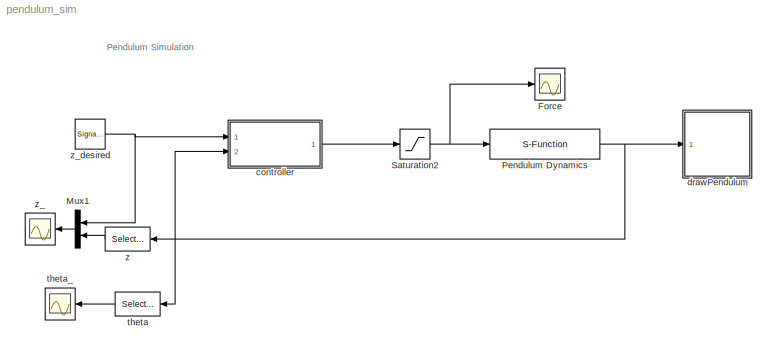
MODEL pendulum_sim
KIND model
BLOCK [Scope] Force
  DataFormat = StructureWithTime
  Floating = off
  LimitDataPoints = off
  NumInputPorts = 1
  Ports = [1]
  SID = 21
  SampleTime = 0
  TimeRange = 100
  YMax = 10
  YMin = -6
BLOCK [Mux] Mux1
  DisplayOption = bar
  Inputs = 2
  Ports = [2, 1]
  SID = 24
BLOCK [S-Function] Pendulum Dynamics
  EnableBusSupport = off
  FunctionName = pendulum_dynamics
  Parameters = AP
  Ports = [1, 1]
  SID = 11
BLOCK [Saturate] Saturation2
  LowerLimit = -5
  Ports = [1, 1]
  SID = 37
  UpperLimit = 5
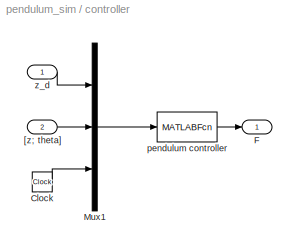
BLOCK [SubSystem] controller
  FunctionWithSeparateData = off
  MaskHideContents = off
  MinAlgLoopOccurrences = off
  Opaque = off
  Ports = [2, 1]
  PropExecContextOutsideSubsystem = off
  RTWSystemCode = Auto
  RequestExecContextInheritance = off
  SID = 38
BLOCK [Clock] controller/Clock
  Decimation = 10
  SID = 41
BLOCK [Outport] controller/F
  IconDisplay = Port number
  SID = 44
BLOCK [Mux] controller/Mux1
  DisplayOption = bar
  Inputs = 3
  Ports = [3, 1]
  SID = 42
BLOCK [Inport] controller/[z; theta]
  IconDisplay = Port number
  Port = 2
  SID = 40
BLOCK [MATLABFcn] controller/pendulum controller
  MATLABFcn = pendulum_ctrl(u,P)
  OutputDimensions = 1
  Ports = [1, 1]
  SID = 43
  SampleTime = P.Ts
BLOCK [Inport] controller/z_d
  IconDisplay = Port number
  SID = 39
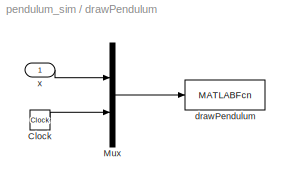
BLOCK [SubSystem] drawPendulum
  FunctionWithSeparateData = off
  MaskDisplay = image(imread('tv.jpg'))
  MaskHideContents = off
  MaskIconFrame = on
  MaskIconOpaque = on
  MaskIconRotate = none
  MaskIconUnits = autoscale
  MaskInitialization = % drawing parameters\nL = 1;\ngap = 0.01;\nwidth = 1.0;\nheight = 0.1;\n
  MaskPortRotate = default
  MinAlgLoopOccurrences = off
  Opaque = off
  Ports = [1]
  PropExecContextOutsideSubsystem = off
  RTWSystemCode = Auto
  RequestExecContextInheritance = off
  SID = 4
BLOCK [Clock] drawPendulum/Clock
  Decimation = 10
  SID = 6
BLOCK [Mux] drawPendulum/Mux
  DisplayOption = bar
  Inputs = 2
  Ports = [2, 1]
  SID = 7
BLOCK [MATLABFcn] drawPendulum/drawPendulum
  MATLABFcn = drawPendulum(u,L,gap,width,height)
  OutputDimensions = 0
  Ports = [1]
  SID = 8
  SampleTime = 0.1
BLOCK [Inport] drawPendulum/x
  IconDisplay = Port number
  SID = 5
BLOCK [Selector] theta
  IndexOptions = Index vector (dialog)
  Indices = [2]
  InputPortWidth = 2
  OutputSizes = 1
  Ports = [1, 1]
  SID = 46
BLOCK [Scope] theta_
  DataFormat = StructureWithTime
  Floating = off
  LimitDataPoints = off
  NumInputPorts = 1
  Ports = [1]
  SID = 23
  SampleTime = 0
  SaveName = ScopeData1
  TimeRange = 100
  YMax = 0.2
  YMin = -0.2
BLOCK [Selector] z
  IndexOptions = Index vector (dialog)
  Indices = [1]
  InputPortWidth = 2
  OutputSizes = 1
  Ports = [1, 1]
  SID = 45
BLOCK [Scope] z_
  DataFormat = StructureWithTime
  Floating = off
  LimitDataPoints = off
  NumInputPorts = 1
  Ports = [1]
  SID = 25
  SampleTime = 0
  SaveName = ScopeData2
  TimeRange = 100
  YMax = 2
  YMin = -2
BLOCK [SignalGenerator] z_desired
  Frequency = .02
  Ports = [0, 1]
  SID = 20
  WaveForm = square
ANNOTATION (root): Pendulum Simulation
LINE Mux1:1 -> z_:1
NET Pendulum Dynamics:1 -> controller:2, drawPendulum:1, theta:1, z:1
NET Saturation2:1 -> Force:1, Pendulum Dynamics:1
LINE controller/Clock:1 -> controller/Mux1:3
LINE controller/Mux1:1 -> controller/pendulum controller:1
LINE controller/[z; theta]:1 -> controller/Mux1:2
LINE controller/pendulum controller:1 -> controller/F:1
LINE controller/z_d:1 -> controller/Mux1:1
LINE controller:1 -> Saturation2:1
LINE drawPendulum/Clock:1 -> drawPendulum/Mux:2
LINE drawPendulum/Mux:1 -> drawPendulum/drawPendulum:1
LINE drawPendulum/x:1 -> drawPendulum/Mux:1
LINE theta:1 -> theta_:1
LINE z:1 -> Mux1:2
NET z_desired:1 -> Mux1:1, controller:1
note: NET lines group one-source signal fan-out (src -> all destinations, sorted); 1:1 wires keep LINE
